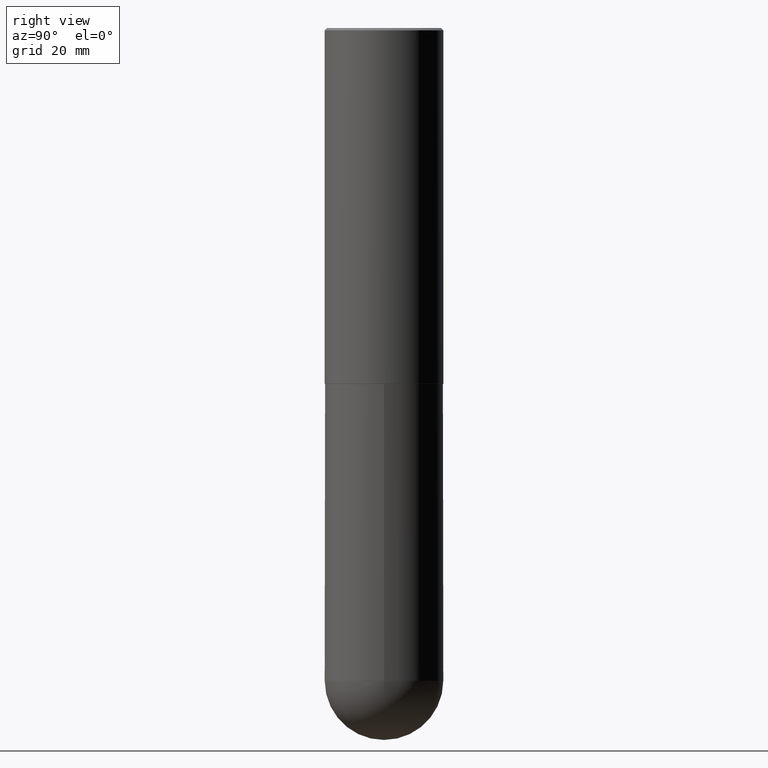
[diagram: clean part render]
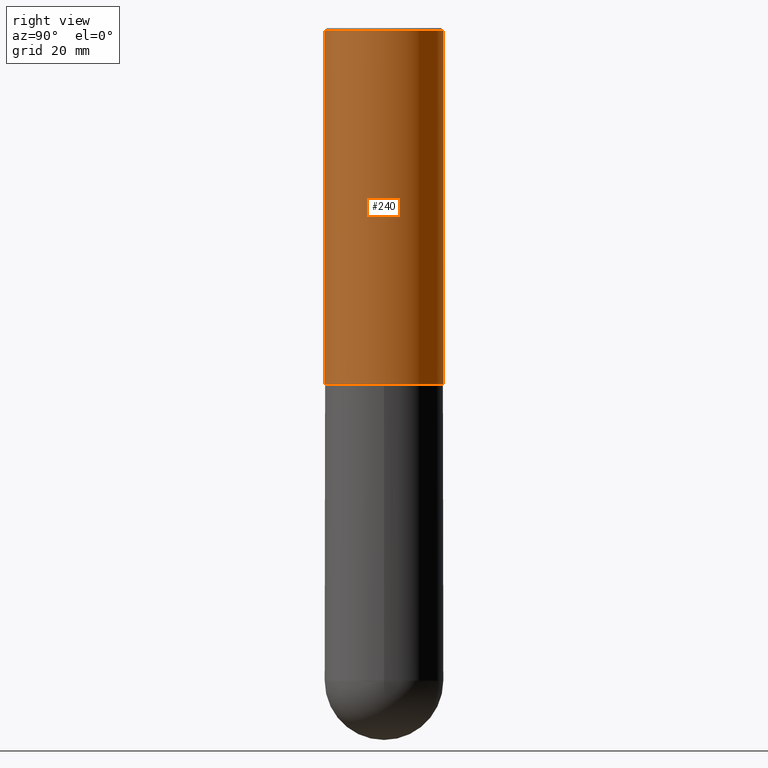
[diagram: same view with one face highlighted and labeled with its STEP entity id]
A machine part, right view. The second image highlights one B-rep face of the part: STEP entity #240.
In plain terms, the highlighted cylindrical surface (partial cylindrical patch) has radius 12.7 mm, axis along (-0, 0, 1).
Its self-contained STEP definition (entity closure, byte-faithful):
#9 = VERTEX_POINT ( 'NONE', #296 ) ;
#18 = EDGE_CURVE ( 'NONE', #9, #334, #151, .T. ) ;
#22 = LINE ( 'NONE', #220, #216 ) ;
#23 = EDGE_CURVE ( 'NONE', #325, #38, #22, .T. ) ;
#25 = DIRECTION ( 'NONE',  ( -2.445691460240369790E-29, 3.491162485563369808E-15, 1.000000000000000000 ) ) ;
#37 = DIRECTION ( 'NONE',  ( -2.445691460240369790E-29, 3.491162485563369808E-15, 1.000000000000000000 ) ) ;
#38 = VERTEX_POINT ( 'NONE', #98 ) ;
#52 = CIRCLE ( 'NONE', #402, 0.5000000000000004441 ) ;
#68 = FACE_OUTER_BOUND ( 'NONE', #359, .T. ) ;
#75 = DIRECTION ( 'NONE',  ( -2.445691460240369790E-29, 3.491162485563369808E-15, 1.000000000000000000 ) ) ;
#98 = CARTESIAN_POINT ( 'NONE',  ( -3.430248998885764992E-15, -0.5000000000000001110, -0.01999999999999835937 ) ) ;
#111 = AXIS2_PLACEMENT_3D ( 'NONE', #318, #37, #164 ) ;
#125 = DIRECTION ( 'NONE',  ( -6.982962677686265133E-15, -1.000000000000000000, 3.278217592397113101E-15 ) ) ;
#138 = ORIENTED_EDGE ( 'NONE', *, *, #18, .T. ) ;
#151 = LINE ( 'NONE', #352, #187 ) ;
#164 = DIRECTION ( 'NONE',  ( -6.982962677686265922E-15, -1.000000000000000000, 3.491643216902136408E-15 ) ) ;
#167 = CARTESIAN_POINT ( 'NONE',  ( -3.491481338843062752E-15, -0.5000000000000108802, -2.998999999999998778 ) ) ;
#187 = VECTOR ( 'NONE', #226, 39.37007874015748143 ) ;
#196 = CARTESIAN_POINT ( 'NONE',  ( 7.334628689260870918E-29, -1.046999629420454738E-14, -2.999000000000000554 ) ) ;
#197 = CARTESIAN_POINT ( 'NONE',  ( 0.000000000000000000, 0.000000000000000000, 0.000000000000000000 ) ) ;
#205 = CARTESIAN_POINT ( 'NONE',  ( 3.491481338843133355E-15, 0.4999999999999999445, -0.02000000000000185310 ) ) ;
#216 = VECTOR ( 'NONE', #25, 39.37007874015748143 ) ;
#220 = CARTESIAN_POINT ( 'NONE',  ( -3.491481338843134539E-15, -0.5000000000000002220, 1.745581242781685693E-15 ) ) ;
#226 = DIRECTION ( 'NONE',  ( -2.445691460240369790E-29, 3.491162485563369808E-15, 1.000000000000000000 ) ) ;
#240 = ADVANCED_FACE ( 'NONE', ( #68 ), #254, .T. ) ;
#254 = CYLINDRICAL_SURFACE ( 'NONE', #383, 0.5000000000000002220 ) ;
#261 = CIRCLE ( 'NONE', #111, 0.5000000000000000000 ) ;
#270 = ORIENTED_EDGE ( 'NONE', *, *, #332, .T. ) ;
#296 = CARTESIAN_POINT ( 'NONE',  ( 3.552713678800539584E-15, 0.4999999999999900080, -2.999000000000001886 ) ) ;
#315 = ORIENTED_EDGE ( 'NONE', *, *, #23, .F. ) ;
#318 = CARTESIAN_POINT ( 'NONE',  ( 4.891382920480766589E-31, -6.982324971126776298E-17, -0.02000000000000010797 ) ) ;
#325 = VERTEX_POINT ( 'NONE', #167 ) ;
#332 = EDGE_CURVE ( 'NONE', #325, #9, #52, .T. ) ;
#334 = VERTEX_POINT ( 'NONE', #205 ) ;
#349 = DIRECTION ( 'NONE',  ( -6.982962677686265922E-15, -1.000000000000000000, 3.491162485563369808E-15 ) ) ;
#352 = CARTESIAN_POINT ( 'NONE',  ( 3.552713678800501718E-15, 0.5000000000000002220, -1.745581242781685693E-15 ) ) ;
#359 = EDGE_LOOP ( 'NONE', ( #270, #138, #365, #315 ) ) ;
#365 = ORIENTED_EDGE ( 'NONE', *, *, #375, .F. ) ;
#375 = EDGE_CURVE ( 'NONE', #38, #334, #261, .T. ) ;
#383 = AXIS2_PLACEMENT_3D ( 'NONE', #197, #384, #349 ) ;
#384 = DIRECTION ( 'NONE',  ( -2.445691460240369790E-29, 3.491162485563369808E-15, 1.000000000000000000 ) ) ;
#402 = AXIS2_PLACEMENT_3D ( 'NONE', #196, #75, #125 ) ;